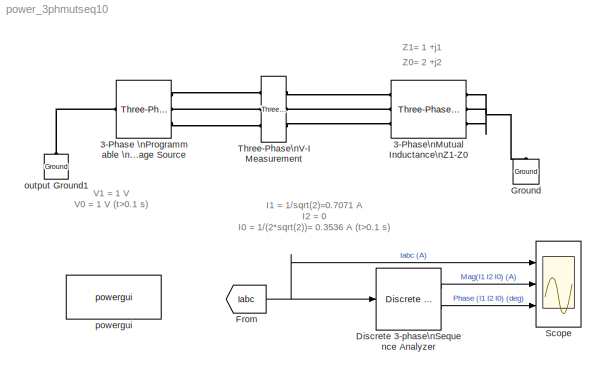
MODEL power_3phmutseq10
KIND model
BLOCK [Reference] 3-Phase \nProgrammable \nVoltage Source  REF=powerlib/Electrical\nSources/Three-Phase\nProgrammable\nVoltage Source
  Amplitudes = [1  0.8  1.2  1.0 ]
  HarmonicA = [1 1 0 0]
  HarmonicB = [2 0.0  0  2]
  HarmonicGeneration = on
  Ports = [0, 0, 0, 0, 0, 1, 3]
  PositiveSequence = [1/sqrt(2)*sqrt(3) 0  60]
  ShowPortLabels = on
  SourceBlock = powerlib/Electrical\nSources/Three-Phase\nProgrammable\nVoltage Source
  SourceType = Three-Phase Programmable Voltage Source
  TimeValues = [0 0.1 0.25 0.4]
  Timing = [0.1  10]
  VariationEntity = None
  VariationFrequency = 2
  VariationMagnitude = 0.4
  VariationPhaseA = off
  VariationRate = 0.5
  VariationStep = -0.3
  VariationTiming = [0.1 1.2]
  VariationType = Modulation
BLOCK [Reference] 3-Phase\nMutual Inductance\nZ1-Z0  REF=powerlib/Elements/Three-Phase\nMutual Inductance\nZ1-Z0
  AttributesFormatString = \\n
  LConnTagsString = a|b|c
  LeftPortType = p1
  PhysicalDomain = powersysdomain
  Ports = [0, 0, 0, 0, 0, 3, 3]
  PositiveSequence = [ 1 1/(2*pi*60)]
  RConnTagsString = A|B|C
  RightPortType = p1
  SourceBlock = powerlib/Elements/Three-Phase\nMutual Inductance\nZ1-Z0
  SourceType = Three-Phase Mutual Inductance Z1-Z0
  SubClassName = unknown
  ZeroSequence = [1 1/(2*pi*60)]*2
BLOCK [Reference] Discrete 3-phase\nSequence Analyzer  REF=powerlib_extras/Discrete\nMeasurements/Discrete 3-phase\nSequence Analyzer
  Freq = 60
  Par_Init = [0 0]
  Ports = [1, 2]
  ShowPortLabels = on
  SourceBlock = powerlib_extras/Discrete\nMeasurements/Discrete 3-phase\nSequence Analyzer
  SourceType = Discrete 3-Phase Sequence Analyzer
  Ts = 50e-6
  n = 1
  seq = Positive Negative Zero
BLOCK [From] From
  CloseFcn = tagdialog Close
  DialogController = Simulink.DDGSource
  GotoTag = Iabc
BLOCK [Reference] Ground  REF=powerlib/Elements/Ground
  AttributesFormatString = \\n
  LConnTagsString = a
  LeftPortType = p1
  PhysicalDomain = powersysdomain
  Ports = [0, 0, 0, 0, 0, 1]
  RightPortType = p1
  SourceBlock = powerlib/Elements/Ground
  SourceType = Ground
  SubClassName = unknown
BLOCK [Scope] Scope
  DataFormat = StructureWithTime
  NumInputPorts = 3
  Ports = [3]
  TimeRange = 0.2
  YMax = 2~0.8~100
  YMin = -2~0~-50
BLOCK [Reference] Three-Phase\nV-I Measurement  REF=powerlib/Measurements/Three-Phase\nV-I Measurement
  CurrentMeasurement = yes
  Ipu = off
  LabelI = Iabc
  LabelV = Vabc
  OutputType = Magnitude
  PSBequivalent = 0
  Pbase = 100e6
  PhasorSimulation = off
  Ports = [0, 0, 0, 0, 0, 3, 3]
  SetLabelI = on
  SetLabelV = off
  ShowPortLabels = on
  SourceBlock = powerlib/Measurements/Three-Phase\nV-I Measurement
  SourceType = Three-Phase VI Measurement
  Vbase = 500e3
  VoltageMeasurement = no
  Vpu = off
BLOCK [Reference] output Ground1  REF=powerlib/Elements/Ground
  AttributesFormatString = \\n
  LConnTagsString = a
  LeftPortType = p1
  PhysicalDomain = powersysdomain
  Ports = [0, 0, 0, 0, 0, 1]
  RightPortType = p1
  SourceBlock = powerlib/Elements/Ground
  SourceType = Ground
  SubClassName = unknown
BLOCK [Reference] powergui  REF=powerlib/powergui
  DisplayStyle = off
  Frange = [0:2:500]
  FreqAxis = off
  MaxFrequency = 1000
  Ports = []
  Priority = 2
  RmsSteady = 1
  ShowPortLabels = on
  SourceBlock = powerlib/powergui
  SourceType = PSB option menu block
  StartTime = 0.0
  Ts = 50e-6
  Xlog = off
  Ylog = off
  ZoomFFT = on
  cycles = 1
  display = off
  echomessages = off
  frequency = 60
  frequencyindice = 1
  frequencyindicesteady = 1
  fundamental = 60
  methode = off
  save = off
  variable = ZData
ANNOTATION (root): I1 = 1/sqrt(2)=0.7071 A\nI2 = 0\nI0 = 1/(2*sqrt(2))= 0.3536 A (t>0.1 s)
ANNOTATION (root): V1 = 1 V\nV0 = 1 V (t>0.1 s)
ANNOTATION (root): Z0= 2 +j2
ANNOTATION (root): Z1= 1 +j1
LINE Discrete 3-phase\nSequence Analyzer:1 -> Scope:2
LINE Discrete 3-phase\nSequence Analyzer:2 -> Scope:3
NET From:1 -> Discrete 3-phase\nSequence Analyzer:1, Scope:1
PLINE 3-Phase \nProgrammable \nVoltage Source:LConn1 -- output Ground1:LConn1
PLINE 3-Phase \nProgrammable \nVoltage Source:RConn1 -- Three-Phase\nV-I Measurement:LConn1
PLINE 3-Phase \nProgrammable \nVoltage Source:RConn2 -- Three-Phase\nV-I Measurement:LConn2
PLINE 3-Phase \nProgrammable \nVoltage Source:RConn3 -- Three-Phase\nV-I Measurement:LConn3
PLINE 3-Phase\nMutual Inductance\nZ1-Z0:LConn1 -- Three-Phase\nV-I Measurement:RConn1
PLINE 3-Phase\nMutual Inductance\nZ1-Z0:LConn2 -- Three-Phase\nV-I Measurement:RConn2
PLINE 3-Phase\nMutual Inductance\nZ1-Z0:LConn3 -- Three-Phase\nV-I Measurement:RConn3
PNET net1: 3-Phase\nMutual Inductance\nZ1-Z0:RConn1 -- 3-Phase\nMutual Inductance\nZ1-Z0:RConn2 -- 3-Phase\nMutual Inductance\nZ1-Z0:RConn3 -- Ground:LConn1
note: NET lines group one-source signal fan-out (src -> all destinations, sorted); 1:1 wires keep LINE; PNET lines group multi-terminal physical nets as a canonical sorted terminal list (undirected conserving connections); 2-terminal nets keep the pairwise PLINE form
